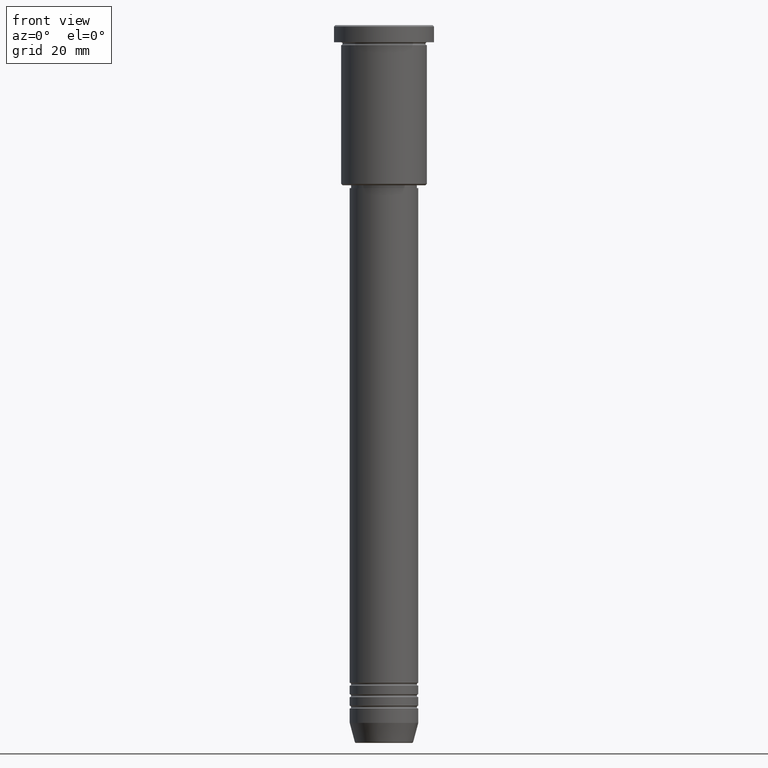
[diagram: clean part render]
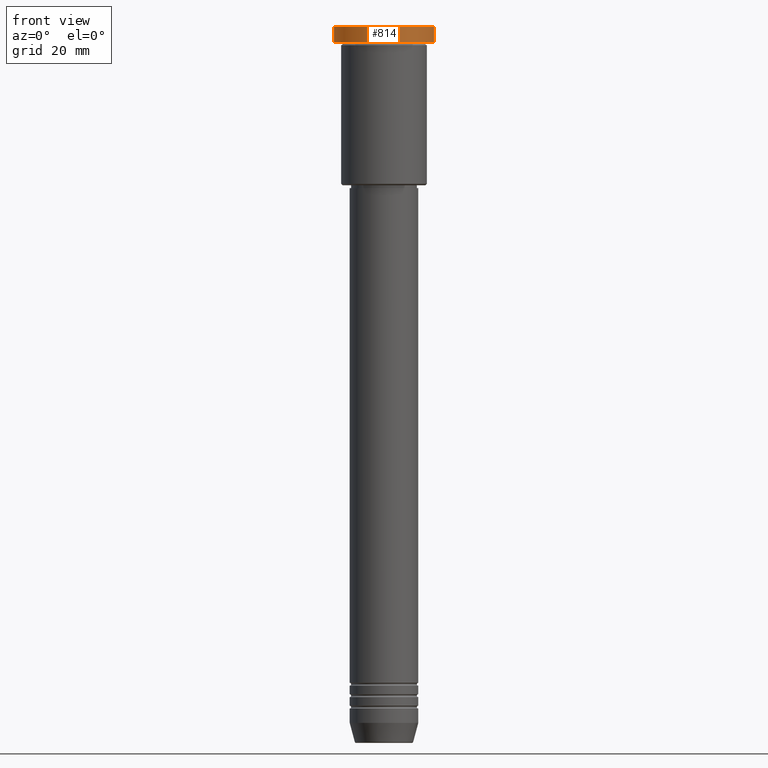
[diagram: same view with one face highlighted and labeled with its STEP entity id]
A machine part, front view. The second image highlights one B-rep face of the part: STEP entity #814.
In plain terms, the highlighted cylindrical surface (partial cylindrical patch) has radius 17.5 mm, axis along (-0, -0, 1).
Its self-contained STEP definition (entity closure, byte-faithful):
#7 = DIRECTION ( 'NONE',  ( 0.000000000000000000, 0.000000000000000000, -1.000000000000000000 ) ) ;
#103 = DIRECTION ( 'NONE',  ( -0.000000000000000000, -0.000000000000000000, 1.000000000000000000 ) ) ;
#104 = DIRECTION ( 'NONE',  ( 1.000000000000000000, 0.000000000000000000, 0.000000000000000000 ) ) ;
#111 = VECTOR ( 'NONE', #416, 1000.000000000000000 ) ;
#132 = CARTESIAN_POINT ( 'NONE',  ( 0.000000000000000000, 0.000000000000000000, 0.000000000000000000 ) ) ;
#146 = VERTEX_POINT ( 'NONE', #450 ) ;
#221 = DIRECTION ( 'NONE',  ( 1.000000000000000000, 0.000000000000000000, 0.000000000000000000 ) ) ;
#238 = EDGE_LOOP ( 'NONE', ( #1183, #1127, #478, #328 ) ) ;
#247 = VECTOR ( 'NONE', #103, 1000.000000000000000 ) ;
#280 = AXIS2_PLACEMENT_3D ( 'NONE', #132, #873, #221 ) ;
#306 = EDGE_CURVE ( 'NONE', #308, #778, #568, .T. ) ;
#308 = VERTEX_POINT ( 'NONE', #746 ) ;
#313 = CYLINDRICAL_SURFACE ( 'NONE', #280, 17.50000000000000000 ) ;
#324 = CARTESIAN_POINT ( 'NONE',  ( -17.50000000000000000, 2.143131898507868248E-15, 0.000000000000000000 ) ) ;
#328 = ORIENTED_EDGE ( 'NONE', *, *, #306, .T. ) ;
#330 = LINE ( 'NONE', #324, #111 ) ;
#336 = DIRECTION ( 'NONE',  ( -0.000000000000000000, -0.000000000000000000, 1.000000000000000000 ) ) ;
#373 = CARTESIAN_POINT ( 'NONE',  ( -17.50000000000000000, 2.143131898507868248E-15, -0.5000000000000283107 ) ) ;
#387 = EDGE_CURVE ( 'NONE', #146, #906, #761, .T. ) ;
#416 = DIRECTION ( 'NONE',  ( -0.000000000000000000, -0.000000000000000000, 1.000000000000000000 ) ) ;
#430 = EDGE_CURVE ( 'NONE', #146, #778, #330, .T. ) ;
#450 = CARTESIAN_POINT ( 'NONE',  ( -17.50000000000000000, 2.143131898507868248E-15, -5.999999999999995559 ) ) ;
#478 = ORIENTED_EDGE ( 'NONE', *, *, #710, .T. ) ;
#492 = AXIS2_PLACEMENT_3D ( 'NONE', #1113, #7, #104 ) ;
#568 = CIRCLE ( 'NONE', #492, 17.50000000000000000 ) ;
#578 = CARTESIAN_POINT ( 'NONE',  ( 0.000000000000000000, 0.000000000000000000, -5.999999999999995559 ) ) ;
#605 = AXIS2_PLACEMENT_3D ( 'NONE', #578, #336, #943 ) ;
#678 = FACE_OUTER_BOUND ( 'NONE', #238, .T. ) ;
#710 = EDGE_CURVE ( 'NONE', #906, #308, #840, .T. ) ;
#746 = CARTESIAN_POINT ( 'NONE',  ( 17.50000000000000000, 0.000000000000000000, -0.5000000000000283107 ) ) ;
#761 = CIRCLE ( 'NONE', #605, 17.50000000000000000 ) ;
#778 = VERTEX_POINT ( 'NONE', #373 ) ;
#814 = ADVANCED_FACE ( 'NONE', ( #678 ), #313, .T. ) ;
#840 = LINE ( 'NONE', #851, #247 ) ;
#851 = CARTESIAN_POINT ( 'NONE',  ( 17.50000000000000000, 0.000000000000000000, 0.000000000000000000 ) ) ;
#873 = DIRECTION ( 'NONE',  ( -0.000000000000000000, -0.000000000000000000, 1.000000000000000000 ) ) ;
#906 = VERTEX_POINT ( 'NONE', #1046 ) ;
#943 = DIRECTION ( 'NONE',  ( 1.000000000000000000, 0.000000000000000000, 0.000000000000000000 ) ) ;
#1046 = CARTESIAN_POINT ( 'NONE',  ( 17.50000000000000000, 0.000000000000000000, -5.999999999999995559 ) ) ;
#1113 = CARTESIAN_POINT ( 'NONE',  ( 0.000000000000000000, 0.000000000000000000, -0.5000000000000283107 ) ) ;
#1127 = ORIENTED_EDGE ( 'NONE', *, *, #387, .T. ) ;
#1183 = ORIENTED_EDGE ( 'NONE', *, *, #430, .F. ) ;